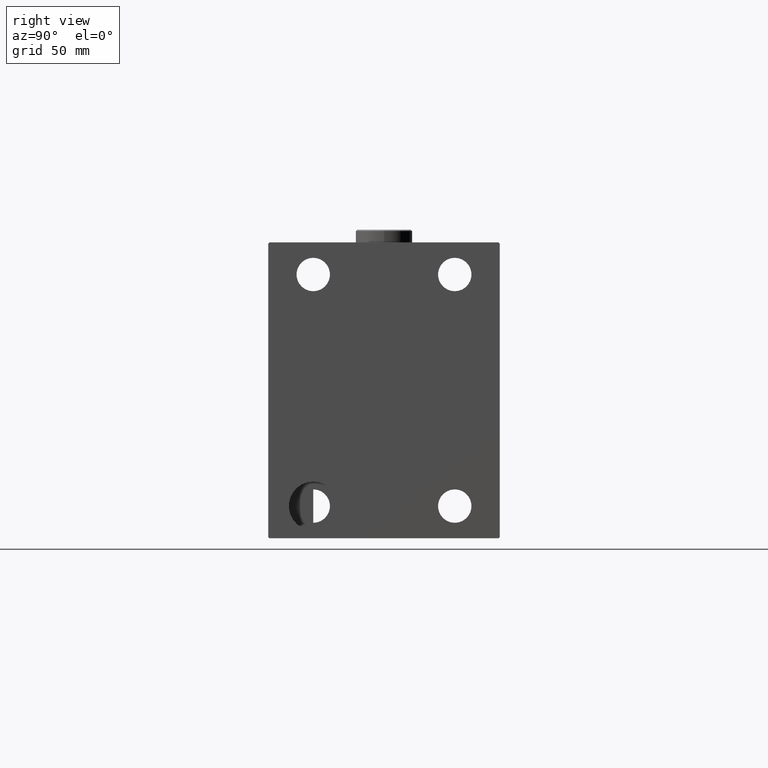
[diagram: clean part render]
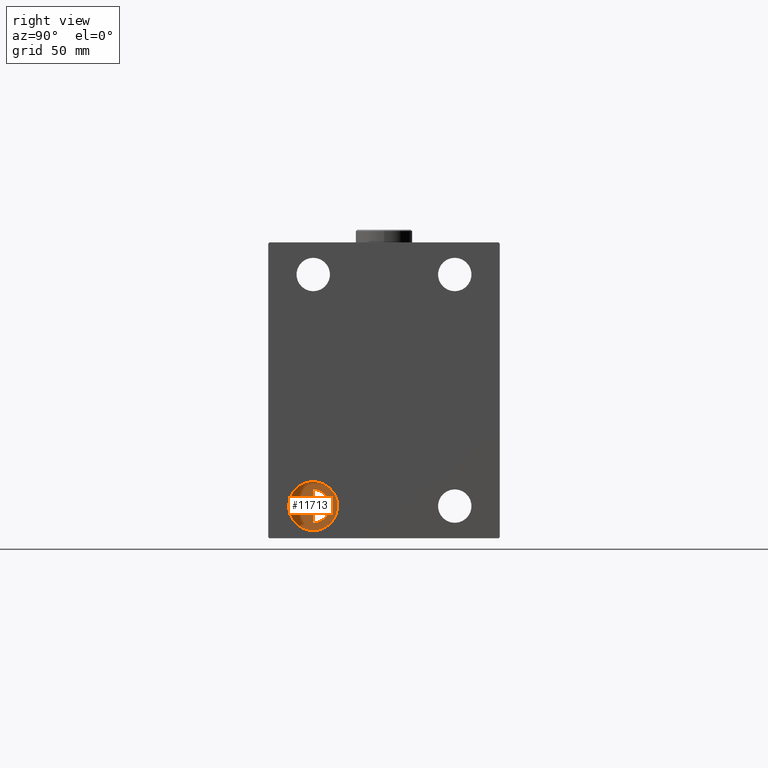
[diagram: same view with one face highlighted and labeled with its STEP entity id]
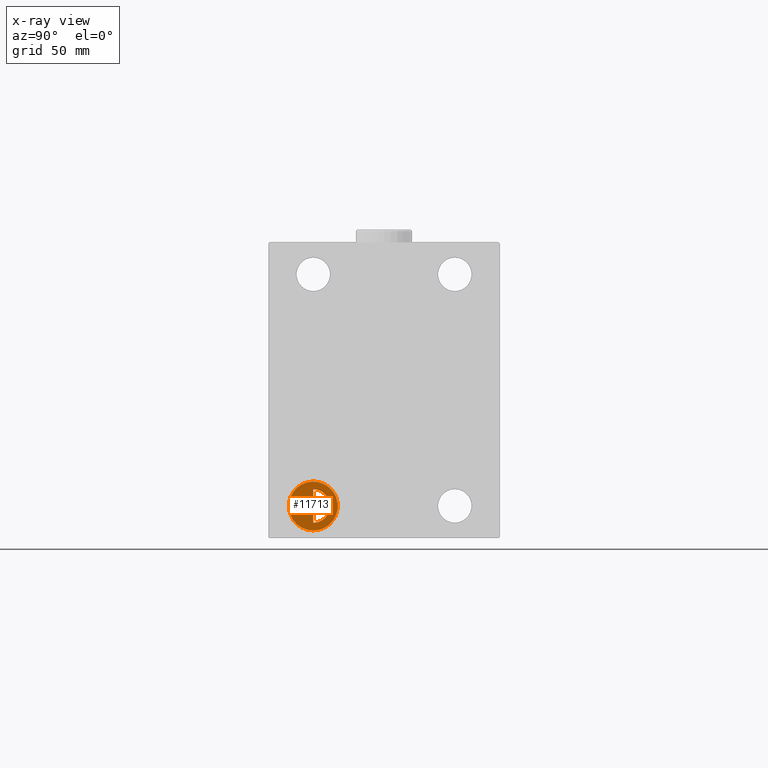
[diagram: x-ray of the same camera — body ghosted, the highlighted face saturated]
A machine part, right view. The second image highlights one B-rep face of the part: STEP entity #11713.
The next image is the same camera in x-ray: the body ghosted, the highlighted face saturated — about 0% of this face is hidden behind the body in this view.
In plain terms, the highlighted planar face has unit normal (1, 0, 0).
Its self-contained STEP definition (entity closure, byte-faithful):
#139 = FACE_OUTER_BOUND ( 'NONE', #7272, .T. ) ;
#171 = CARTESIAN_POINT ( 'NONE',  ( 215.0000000000000000, -27.50000000000000000, -51.49999999999998579 ) ) ;
#503 = ORIENTED_EDGE ( 'NONE', *, *, #33755, .F. ) ;
#2574 = DIRECTION ( 'NONE',  ( 1.000000000000000000, 0.000000000000000000, 0.000000000000000000 ) ) ;
#2591 = CARTESIAN_POINT ( 'NONE',  ( 206.5000000000000284, -8.866364432770346144E-15, 57.39999999999999858 ) ) ;
#4218 = AXIS2_PLACEMENT_3D ( 'NONE', #16294, #9423, #30715 ) ;
#4360 = CARTESIAN_POINT ( 'NONE',  ( 215.0000000000000000, -27.50000000000000000, -44.99999999999998579 ) ) ;
#4917 = VERTEX_POINT ( 'NONE', #34902 ) ;
#5663 = EDGE_CURVE ( 'NONE', #44497, #4917, #43622, .T. ) ;
#6412 = AXIS2_PLACEMENT_3D ( 'NONE', #23985, #6587, #41415 ) ;
#6587 = DIRECTION ( 'NONE',  ( 1.000000000000000000, 0.000000000000000000, -0.000000000000000000 ) ) ;
#7272 = EDGE_LOOP ( 'NONE', ( #27688, #13738 ) ) ;
#8021 = EDGE_LOOP ( 'NONE', ( #8266, #19390 ) ) ;
#8266 = ORIENTED_EDGE ( 'NONE', *, *, #29527, .T. ) ;
#8276 = CARTESIAN_POINT ( 'NONE',  ( 215.0000000000000000, -27.50000000000000000, -44.99999999999998579 ) ) ;
#9093 = CARTESIAN_POINT ( 'NONE',  ( 214.5850000000000364, -8.866364432770346144E-15, 57.39999999999999858 ) ) ;
#9423 = DIRECTION ( 'NONE',  ( 0.000000000000000000, 0.000000000000000000, 1.000000000000000000 ) ) ;
#10520 = EDGE_LOOP ( 'NONE', ( #41676, #27384 ) ) ;
#10551 = DIRECTION ( 'NONE',  ( 0.000000000000000000, 0.000000000000000000, 1.000000000000000000 ) ) ;
#11713 = ADVANCED_FACE ( 'NONE', ( #139, #30636 ), #41644, .T. ) ;
#11975 = FACE_BOUND ( 'NONE', #22901, .T. ) ;
#12764 = AXIS2_PLACEMENT_3D ( 'NONE', #30033, #22926, #44029 ) ;
#13738 = ORIENTED_EDGE ( 'NONE', *, *, #5663, .F. ) ;
#14183 = VERTEX_POINT ( 'NONE', #30768 ) ;
#14724 = FACE_OUTER_BOUND ( 'NONE', #10520, .T. ) ;
#16294 = CARTESIAN_POINT ( 'NONE',  ( 206.5000000000000284, -8.866364432770346144E-15, 57.39999999999999858 ) ) ;
#17135 = CIRCLE ( 'NONE', #12764, 6.499999999999999112 ) ;
#17238 = CIRCLE ( 'NONE', #36288, 8.085000000000007958 ) ;
#17440 = CARTESIAN_POINT ( 'NONE',  ( 206.5000000000000284, -8.866364432770346144E-15, 57.39999999999999858 ) ) ;
#17752 = VERTEX_POINT ( 'NONE', #9093 ) ;
#19390 = ADVANCED_FACE ( 'NONE', ( #11975, #14724 ), #25946, .T. ) ;
#20778 = CIRCLE ( 'NONE', #31034, 9.500000000000001776 ) ;
#22175 = CARTESIAN_POINT ( 'NONE',  ( 206.5000000000000284, -8.866364432770346144E-15, 57.39999999999999858 ) ) ;
#22901 = EDGE_LOOP ( 'NONE', ( #503, #42691 ) ) ;
#22922 = EDGE_CURVE ( 'NONE', #35015, #17752, #37348, .T. ) ;
#22926 = DIRECTION ( 'NONE',  ( -1.000000000000000000, -0.000000000000000000, -0.000000000000000000 ) ) ;
#23965 = CIRCLE ( 'NONE', #4218, 12.00000000000001066 ) ;
#23985 = CARTESIAN_POINT ( 'NONE',  ( 215.0000000000000000, 0.000000000000000000, 0.000000000000000000 ) ) ;
#24511 = DIRECTION ( 'NONE',  ( -1.000000000000000000, -0.000000000000000000, -0.000000000000000000 ) ) ;
#24672 = CIRCLE ( 'NONE', #25405, 12.00000000000001066 ) ;
#25405 = AXIS2_PLACEMENT_3D ( 'NONE', #2591, #38099, #30303 ) ;
#25441 = VERTEX_POINT ( 'NONE', #171 ) ;
#25946 = PLANE ( 'NONE',  #45298 ) ;
#26811 = CARTESIAN_POINT ( 'NONE',  ( 194.5000000000000000, -7.396788273793522789E-15, 57.39999999999999858 ) ) ;
#27384 = ORIENTED_EDGE ( 'NONE', *, *, #44475, .T. ) ;
#27688 = ORIENTED_EDGE ( 'NONE', *, *, #29476, .F. ) ;
#28638 = VERTEX_POINT ( 'NONE', #43350 ) ;
#28684 = CARTESIAN_POINT ( 'NONE',  ( 206.5000000000000284, -8.866364432770346144E-15, 57.39999999999999858 ) ) ;
#28718 = VERTEX_POINT ( 'NONE', #26811 ) ;
#29127 = DIRECTION ( 'NONE',  ( 0.000000000000000000, 0.000000000000000000, 1.000000000000000000 ) ) ;
#29476 = EDGE_CURVE ( 'NONE', #4917, #44497, #20778, .T. ) ;
#29527 = EDGE_CURVE ( 'NONE', #28638, #25441, #17135, .T. ) ;
#30033 = CARTESIAN_POINT ( 'NONE',  ( 215.0000000000000000, -27.50000000000000000, -44.99999999999998579 ) ) ;
#30303 = DIRECTION ( 'NONE',  ( 1.000000000000000000, 0.000000000000000000, 0.000000000000000000 ) ) ;
#30636 = FACE_BOUND ( 'NONE', #8021, .T. ) ;
#30715 = DIRECTION ( 'NONE',  ( 1.000000000000000000, 0.000000000000000000, 0.000000000000000000 ) ) ;
#30768 = CARTESIAN_POINT ( 'NONE',  ( 218.5000000000000284, -8.866364432770346144E-15, 57.39999999999999858 ) ) ;
#31034 = AXIS2_PLACEMENT_3D ( 'NONE', #8276, #40363, #29127 ) ;
#33755 = EDGE_CURVE ( 'NONE', #17752, #35015, #17238, .T. ) ;
#34073 = AXIS2_PLACEMENT_3D ( 'NONE', #4360, #24511, #42625 ) ;
#34902 = CARTESIAN_POINT ( 'NONE',  ( 215.0000000000000000, -27.50000000000000000, -54.49999999999998579 ) ) ;
#35015 = VERTEX_POINT ( 'NONE', #36050 ) ;
#36050 = CARTESIAN_POINT ( 'NONE',  ( 198.4150000000000205, -7.876237495659711777E-15, 57.39999999999999858 ) ) ;
#36166 = DIRECTION ( 'NONE',  ( 1.000000000000000000, 0.000000000000000000, 0.000000000000000000 ) ) ;
#36288 = AXIS2_PLACEMENT_3D ( 'NONE', #22175, #36842, #36166 ) ;
#36842 = DIRECTION ( 'NONE',  ( 0.000000000000000000, 0.000000000000000000, 1.000000000000000000 ) ) ;
#37348 = CIRCLE ( 'NONE', #42444, 8.085000000000007958 ) ;
#37381 = CARTESIAN_POINT ( 'NONE',  ( 215.0000000000000000, -27.50000000000000000, -35.49999999999998579 ) ) ;
#38099 = DIRECTION ( 'NONE',  ( 0.000000000000000000, 0.000000000000000000, 1.000000000000000000 ) ) ;
#40363 = DIRECTION ( 'NONE',  ( -1.000000000000000000, -0.000000000000000000, -0.000000000000000000 ) ) ;
#41415 = DIRECTION ( 'NONE',  ( 0.000000000000000000, 0.000000000000000000, 1.000000000000000000 ) ) ;
#41644 = PLANE ( 'NONE',  #6412 ) ;
#41676 = ORIENTED_EDGE ( 'NONE', *, *, #42647, .T. ) ;
#42444 = AXIS2_PLACEMENT_3D ( 'NONE', #17440, #10551, #2574 ) ;
#42625 = DIRECTION ( 'NONE',  ( 0.000000000000000000, 0.000000000000000000, 1.000000000000000000 ) ) ;
#42647 = EDGE_CURVE ( 'NONE', #14183, #28718, #24672, .T. ) ;
#42685 = DIRECTION ( 'NONE',  ( 1.000000000000000000, 0.000000000000000000, -0.000000000000000000 ) ) ;
#42691 = ORIENTED_EDGE ( 'NONE', *, *, #22922, .F. ) ;
#43157 = DIRECTION ( 'NONE',  ( 0.000000000000000000, 0.000000000000000000, 1.000000000000000000 ) ) ;
#43350 = CARTESIAN_POINT ( 'NONE',  ( 215.0000000000000000, -27.50000000000000000, -38.49999999999998579 ) ) ;
#43622 = CIRCLE ( 'NONE', #34073, 9.500000000000001776 ) ;
#44029 = DIRECTION ( 'NONE',  ( 0.000000000000000000, 0.000000000000000000, -1.000000000000000000 ) ) ;
#44475 = EDGE_CURVE ( 'NONE', #28718, #14183, #23965, .T. ) ;
#44497 = VERTEX_POINT ( 'NONE', #37381 ) ;
#45298 = AXIS2_PLACEMENT_3D ( 'NONE', #28684, #43157, #42685 ) ;